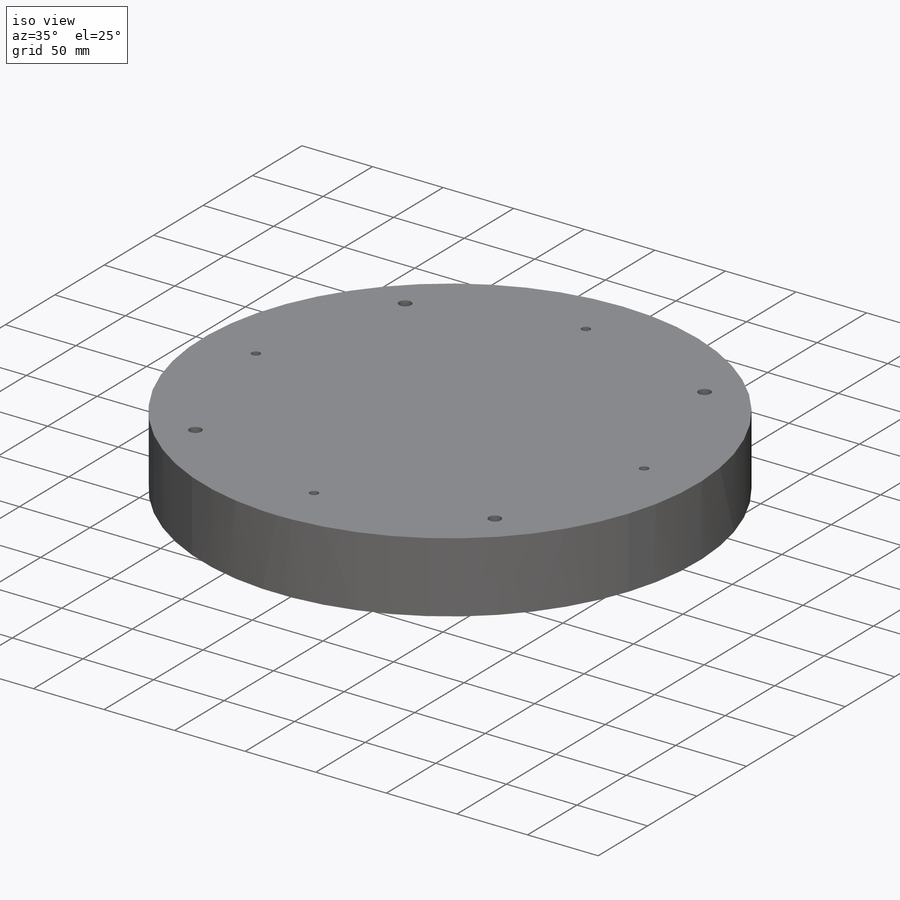
[diagram: iso view]
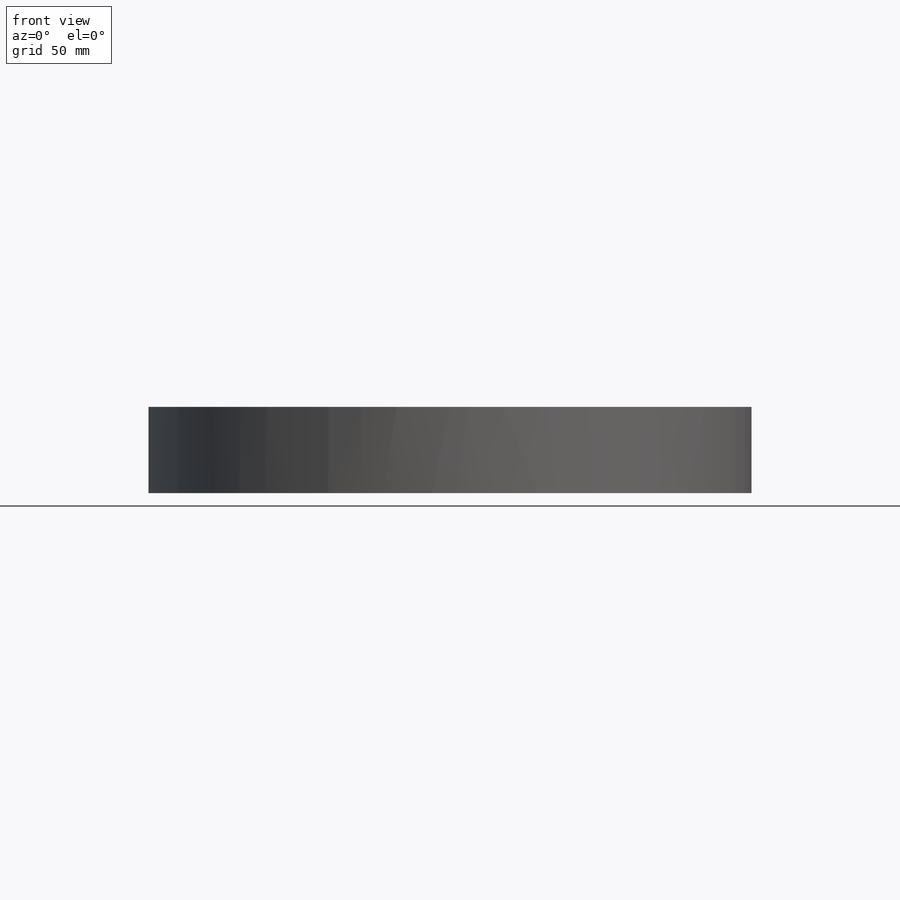
[diagram: front view]
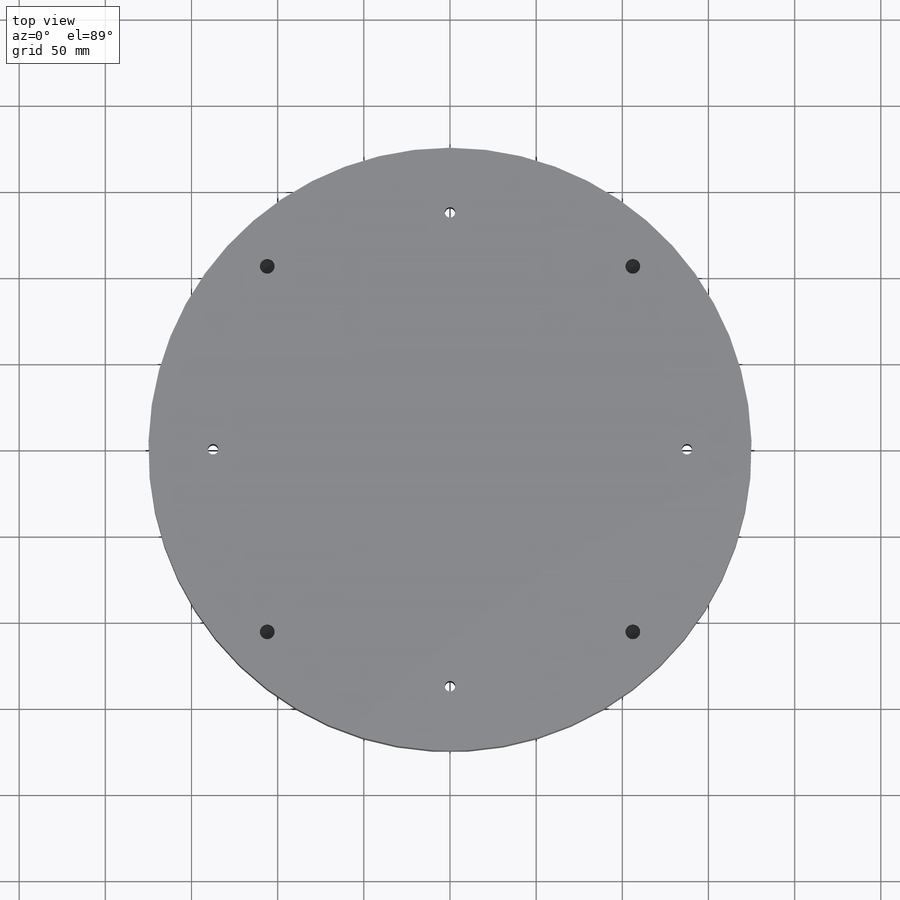
[diagram: top view]
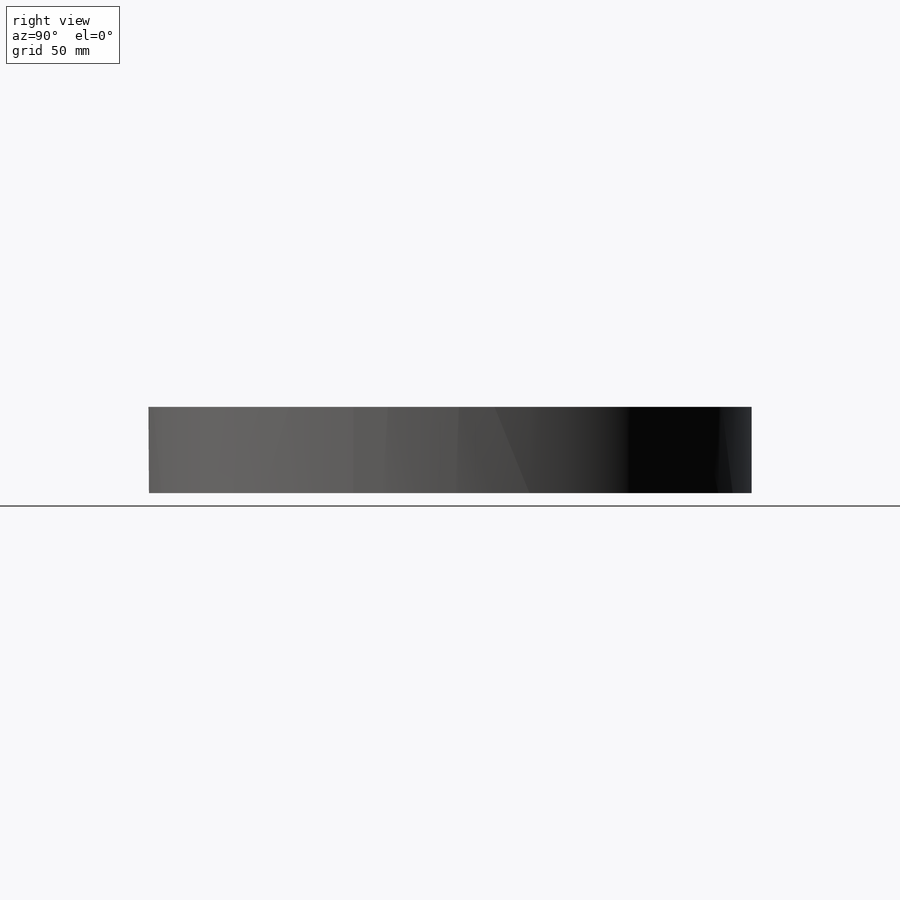
[diagram: right view]
SOLIDWORKS PART (.sldprt)
format: sldprt  version: not decoded by parser v0  size: 310,784 bytes
history: native  units: mm
features: sketch x15, hole x3, extrude x2, material x1 + 1 further entry (+11 scaffold rows collapsed)
feature tree (33):
  scaffold x11  (default folders/planes/origin — collapsed)
  material  "Material <not specified>"
  "Annotations"  RD1=350mm
  sketch  "Sketch1"  dims[D1=150.0mm]
  extrude  "Boss-Extrude1"  Depth=30mm
  sketch  "Sketch2"  dims[c1.D3=~148.162702mm c1.D2=300.0mm c1.D1=150.0mm c2.D2=200.0mm c2.D3=200.0mm c2.D1=300.0mm c3.D1=90.0deg]
  hole  "Tap Drill for M10x1.5 Tap1"  Diameter=8.5mm Depth=20mm
  sketch  "Sketch4"  dims[D1=200.0mm]
  sketch  "Sketch3"  dims[hole-wizard template sketch: 50 standard entries collapsed; hole parameters above]
  sketch  "Sketch7"
  extrude  "Boss-Extrude2"  Depth=20mm
  sketch  "Sketch8"  dims[D1=125.0mm]
  sketch  "Sketch10"  dims[D1=~138.376332mm]
  sketch  "Sketch14"  dims[D1=290.0mm D2=30.0mm]
  sketch  "Sketch15"  dims[D1=275.0mm]
  hole  "Ø6.0 (6) Diameter Hole1"  Diameter=6mm Depth=50mm
  sketch  "Sketch19"
  sketch  "Sketch20"  dims[hole-wizard template sketch: 60 standard entries collapsed; hole parameters kept: c18.Thru Hole Depth=50.0mm]
  sketch  "Sketch21"  dims[D1=156.972mm]
  hole  "Tap Drill for M7x1.0 Tap2"  Diameter=6mm Depth=20mm
  sketch  "Sketch23"
  sketch  "Sketch22"  dims[hole-wizard template sketch: 47 standard entries collapsed; hole parameters kept: c15.Hole Depth=20.0mm c15.D3=~14.816244mm c15.Drill Angle=118.0deg]
  sketch  "Sketch24"  dims[D1=300.0mm]
decode coverage: 17 of 20 modeling features carry decoded parameters; 1 rows unclassified (native names shown)
note: ~ marks probable driven/reference dimensions
note: suppression state not decoded; provenance and decode notes live in map.json
